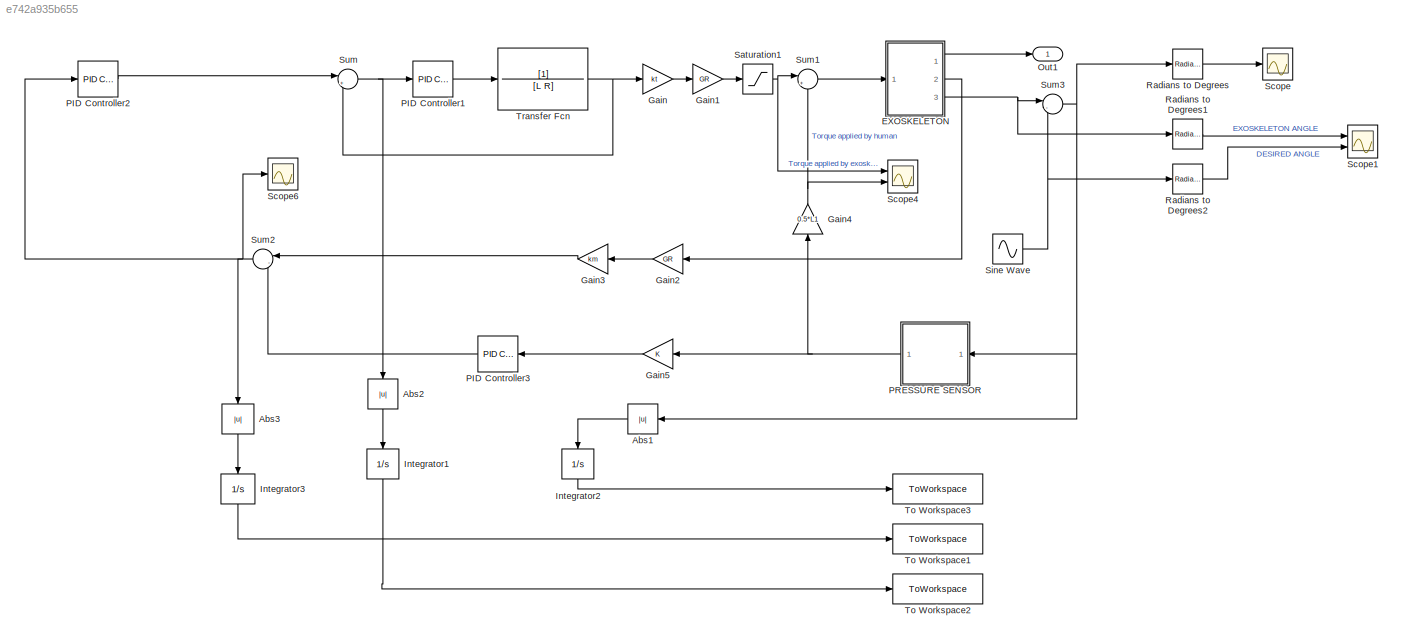
MODEL slx_e742a935b655
KIND model
CONFIG AbsTol = auto
CONFIG EnableMultiTasking = off
CONFIG FixedStep = auto
CONFIG MaxStep = 0.5
CONFIG MinStep = 0.00001
CONFIG RelTol = 0.05
CONFIG SampleTimeConstraint = Unconstrained
CONFIG Solver = ode45
CONFIG SolverName = ode45
CONFIG StartTime = 0.0
CONFIG StopTime = 5
WORKSPACE source: external: MAT-File  (data not in archive)
BLOCK [Abs] Abs1
  SaturateOnIntegerOverflow = off
BLOCK [Abs] Abs2
  SaturateOnIntegerOverflow = off
BLOCK [Abs] Abs3
  SaturateOnIntegerOverflow = off
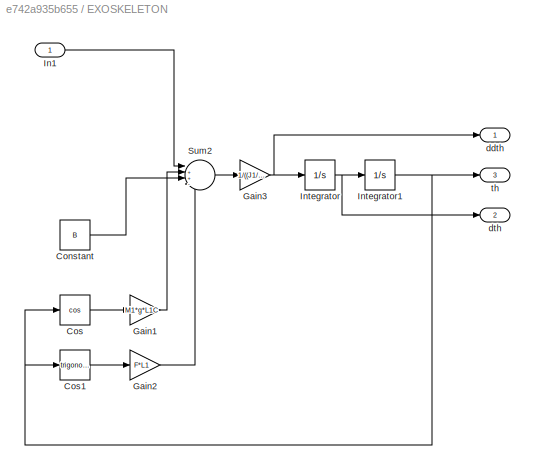
BLOCK [SubSystem] EXOSKELETON 
  Ports = [1, 3]
  RequestExecContextInheritance = off
BLOCK [Constant] EXOSKELETON /Constant
  Value = B
BLOCK [Trigonometry] EXOSKELETON /Cos
  Operator = cos
  Ports = [1, 1]
BLOCK [Trigonometry] EXOSKELETON /Cos1
  Ports = [1, 1]
BLOCK [Gain] EXOSKELETON /Gain1
  Gain = M1*g*L1C
  OutDataTypeStr = Inherit: Inherit via internal rule
  ParamDataTypeStr = Inherit: Inherit via internal rule
  SaturateOnIntegerOverflow = off
BLOCK [Gain] EXOSKELETON /Gain2
  Gain = F*L1
  OutDataTypeStr = Inherit: Inherit via internal rule
  ParamDataTypeStr = Inherit: Inherit via internal rule
  SaturateOnIntegerOverflow = off
BLOCK [Gain] EXOSKELETON /Gain3
  Gain = 1/((J1/GR^2) + M1*L1C^2 + J_rotor)
  OutDataTypeStr = Inherit: Inherit via internal rule
  ParamDataTypeStr = Inherit: Inherit via internal rule
  SaturateOnIntegerOverflow = off
BLOCK [Inport] EXOSKELETON /In1
  IconDisplay = Port number
BLOCK [Integrator] EXOSKELETON /Integrator
  Ports = [1, 1]
BLOCK [Integrator] EXOSKELETON /Integrator1
  Ports = [1, 1]
BLOCK [Sum] EXOSKELETON /Sum2
  IconShape = round
  InputSameDT = off
  Inputs = |++-+
  OutDataTypeStr = Inherit: Inherit via internal rule
  Ports = [4, 1]
  SaturateOnIntegerOverflow = off
BLOCK [Outport] EXOSKELETON /ddth
  IconDisplay = Port number
BLOCK [Outport] EXOSKELETON /dth
  IconDisplay = Port number
  Port = 2
BLOCK [Outport] EXOSKELETON /th
  IconDisplay = Port number
  Port = 3
BLOCK [Gain] Gain
  Gain = kt
  OutDataTypeStr = Inherit: Inherit via internal rule
  ParamDataTypeStr = Inherit: Inherit via internal rule
  SaturateOnIntegerOverflow = off
BLOCK [Gain] Gain1
  Gain = GR
  OutDataTypeStr = Inherit: Inherit via internal rule
  ParamDataTypeStr = Inherit: Inherit via internal rule
  SaturateOnIntegerOverflow = off
BLOCK [Gain] Gain2
  Gain = GR
  OutDataTypeStr = Inherit: Inherit via internal rule
  ParamDataTypeStr = Inherit: Inherit via internal rule
  SaturateOnIntegerOverflow = off
BLOCK [Gain] Gain3
  Gain = km
  OutDataTypeStr = Inherit: Inherit via internal rule
  ParamDataTypeStr = Inherit: Inherit via internal rule
  SaturateOnIntegerOverflow = off
BLOCK [Gain] Gain4
  Gain = 0.5*L1
  OutDataTypeStr = Inherit: Inherit via internal rule
  ParamDataTypeStr = Inherit: Inherit via internal rule
  SaturateOnIntegerOverflow = off
BLOCK [Gain] Gain5
  OutDataTypeStr = Inherit: Inherit via internal rule
  ParamDataTypeStr = Inherit: Inherit via internal rule
  SaturateOnIntegerOverflow = off
BLOCK [Integrator] Integrator1
  Ports = [1, 1]
BLOCK [Integrator] Integrator2
  Ports = [1, 1]
BLOCK [Integrator] Integrator3
  Ports = [1, 1]
BLOCK [Outport] Out1
  IconDisplay = Port number
BLOCK [Reference] PID Controller1  REF=simulink/Continuous/PID Controller
  Ports = [1, 1]
  SourceBlock = simulink/Continuous/PID Controller
  SourceProductBaseCode = SL
  SourceProductName = Simulink
  SourceType = PID 1dof
BLOCK [Reference] PID Controller2  REF=simulink/Continuous/PID Controller
  Ports = [1, 1]
  SourceBlock = simulink/Continuous/PID Controller
  SourceProductBaseCode = SL
  SourceProductName = Simulink
  SourceType = PID 1dof
BLOCK [Reference] PID Controller3  REF=simulink/Continuous/PID Controller
  Ports = [1, 1]
  SourceBlock = simulink/Continuous/PID Controller
  SourceProductBaseCode = SL
  SourceProductName = Simulink
  SourceType = PID 1dof
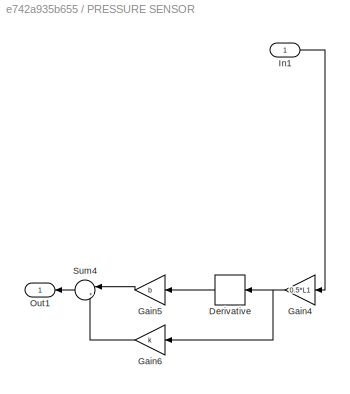
BLOCK [SubSystem] PRESSURE SENSOR
  Ports = [1, 1]
  RequestExecContextInheritance = off
BLOCK [Derivative] PRESSURE SENSOR/Derivative
BLOCK [Gain] PRESSURE SENSOR/Gain4
  Gain = 0.5*L1
  OutDataTypeStr = Inherit: Inherit via internal rule
  ParamDataTypeStr = Inherit: Inherit via internal rule
  SaturateOnIntegerOverflow = off
BLOCK [Gain] PRESSURE SENSOR/Gain5
  Gain = b
  OutDataTypeStr = Inherit: Inherit via internal rule
  ParamDataTypeStr = Inherit: Inherit via internal rule
  SaturateOnIntegerOverflow = off
BLOCK [Gain] PRESSURE SENSOR/Gain6
  Gain = k
  OutDataTypeStr = Inherit: Inherit via internal rule
  ParamDataTypeStr = Inherit: Inherit via internal rule
  SaturateOnIntegerOverflow = off
BLOCK [Inport] PRESSURE SENSOR/In1
  IconDisplay = Port number
BLOCK [Outport] PRESSURE SENSOR/Out1
  IconDisplay = Port number
BLOCK [Sum] PRESSURE SENSOR/Sum4
  IconShape = round
  InputSameDT = off
  Inputs = |++
  OutDataTypeStr = Inherit: Inherit via internal rule
  Ports = [2, 1]
  SaturateOnIntegerOverflow = off
BLOCK [Reference] Radians to Degrees  REF=simulink_extras/Transformations/Radians
to Degrees
  Ports = [1, 1]
  SourceBlock = simulink_extras/Transformations/Radians\nto Degrees
  SourceProductBaseCode = SL
  SourceProductName = Simulink
  SourceType = RadiansToDegrees
BLOCK [Reference] Radians to Degrees1  REF=simulink_extras/Transformations/Radians
to Degrees
  Ports = [1, 1]
  SourceBlock = simulink_extras/Transformations/Radians\nto Degrees
  SourceProductBaseCode = SL
  SourceProductName = Simulink
  SourceType = RadiansToDegrees
BLOCK [Reference] Radians to Degrees2  REF=simulink_extras/Transformations/Radians
to Degrees
  Ports = [1, 1]
  SourceBlock = simulink_extras/Transformations/Radians\nto Degrees
  SourceProductBaseCode = SL
  SourceProductName = Simulink
  SourceType = RadiansToDegrees
BLOCK [Saturate] Saturation1
  InputPortMap = u0
  LowerLimit = -200
  Ports = [1, 1]
  UpperLimit = 200
BLOCK [Scope] Scope
  Floating = off
  NumInputPorts = 1
  Ports = [1]
  ScopeSpecificationString = Simulink.scopes.TimeScopeBlockCfg('CurrentConfiguration', extmgr.ConfigurationSet(extmgr.Configuration('Core','General UI',true),extmgr.Configuration('Core','Source UI',true),extmgr.Configuration('Sources','WiredSimulink',true),extmgr.Configuration('Visuals','Time Domain',true,'SerializedDisplays',{struct('MinYLimReal','-3.15764','MaxYLimReal','3.03013','YLabelReal','','MinYLimMag','0.00000','MaxY...<+1417ch>
BLOCK [Scope] Scope1
  Floating = off
  NumInputPorts = 2
  Ports = [2]
  ScopeSpecificationString = Simulink.scopes.TimeScopeBlockCfg('CurrentConfiguration', extmgr.ConfigurationSet(extmgr.Configuration('Core','General UI',true),extmgr.Configuration('Core','Source UI',true),extmgr.Configuration('Sources','WiredSimulink',true,'DataLoggingVariableName','ScopeData1'),extmgr.Configuration('Visuals','Time Domain',true,'SerializedDisplays',{struct('MinYLimReal','-28.64789','MaxYLimReal','6.1856','YLab...<+1512ch>
BLOCK [Scope] Scope4
  Floating = off
  NumInputPorts = 2
  Ports = [2]
  ScopeSpecificationString = Simulink.scopes.TimeScopeBlockCfg('CurrentConfiguration', extmgr.ConfigurationSet(extmgr.Configuration('Core','General UI',true),extmgr.Configuration('Core','Source UI',true),extmgr.Configuration('Sources','WiredSimulink',true,'DataLoggingVariableName','ScopeData2'),extmgr.Configuration('Visuals','Time Domain',true,'SerializedDisplays',{struct('MinYLimReal','-32.56275','MaxYLimReal','59.17364','YL...<+1542ch>
BLOCK [Scope] Scope6
  Floating = off
  NumInputPorts = 1
  Ports = [1]
  ScopeSpecificationString = Simulink.scopes.TimeScopeBlockCfg('CurrentConfiguration', extmgr.ConfigurationSet(extmgr.Configuration('Core','General UI',true),extmgr.Configuration('Core','Source UI',true),extmgr.Configuration('Sources','WiredSimulink',true,'DataLoggingVariableName','ScopeData7'),extmgr.Configuration('Visuals','Time Domain',true,'SerializedDisplays',{struct('MinYLimReal','-117.7125','MaxYLimReal','89.8222','YLa...<+1444ch>
BLOCK [Sin] Sine Wave
  Amplitude = 0.4
  Frequency = 2
  Ports = [0, 1]
  SampleTime = 0
BLOCK [Sum] Sum
  IconShape = round
  InputSameDT = off
  Inputs = |+-
  OutDataTypeStr = Inherit: Inherit via internal rule
  Ports = [2, 1]
  SaturateOnIntegerOverflow = off
BLOCK [Sum] Sum1
  IconShape = round
  InputSameDT = off
  Inputs = |++
  OutDataTypeStr = Inherit: Inherit via internal rule
  Ports = [2, 1]
  SaturateOnIntegerOverflow = off
BLOCK [Sum] Sum2
  IconShape = round
  InputSameDT = off
  Inputs = |-+
  OutDataTypeStr = Inherit: Inherit via internal rule
  Ports = [2, 1]
  SaturateOnIntegerOverflow = off
BLOCK [Sum] Sum3
  IconShape = round
  InputSameDT = off
  Inputs = |-+
  OutDataTypeStr = Inherit: Inherit via internal rule
  Ports = [2, 1]
  SaturateOnIntegerOverflow = off
BLOCK [ToWorkspace] To Workspace1
  FixptAsFi = on
  MaxDataPoints = inf
  Ports = [1]
  SampleTime = -1
  VariableName = IAE2
BLOCK [ToWorkspace] To Workspace2
  FixptAsFi = on
  MaxDataPoints = inf
  Ports = [1]
  SampleTime = -1
  VariableName = IAE3
BLOCK [ToWorkspace] To Workspace3
  FixptAsFi = on
  MaxDataPoints = inf
  Ports = [1]
  SampleTime = -1
  VariableName = IAE1
BLOCK [TransferFcn] Transfer Fcn
  Denominator = [L R]
LINE Abs1:1 -> Integrator2:1
LINE Abs2:1 -> Integrator1:1
LINE Abs3:1 -> Integrator3:1
LINE EXOSKELETON /Constant:1 -> EXOSKELETON /Sum2:3
LINE EXOSKELETON /Cos1:1 -> EXOSKELETON /Gain2:1
LINE EXOSKELETON /Cos:1 -> EXOSKELETON /Gain1:1
LINE EXOSKELETON /Gain1:1 -> EXOSKELETON /Sum2:2
LINE EXOSKELETON /Gain2:1 -> EXOSKELETON /Sum2:4
NET EXOSKELETON /Gain3:1 -> EXOSKELETON /Integrator:1, EXOSKELETON /ddth:1
LINE EXOSKELETON /In1:1 -> EXOSKELETON /Sum2:1
NET EXOSKELETON /Integrator1:1 -> EXOSKELETON /Cos1:1, EXOSKELETON /Cos:1, EXOSKELETON /th:1
NET EXOSKELETON /Integrator:1 -> EXOSKELETON /Integrator1:1, EXOSKELETON /dth:1
LINE EXOSKELETON /Sum2:1 -> EXOSKELETON /Gain3:1
LINE EXOSKELETON :1 -> Out1:1
LINE EXOSKELETON :2 -> Gain2:1
NET EXOSKELETON :3 -> Radians to Degrees1:1, Sum3:1
LINE Gain1:1 -> Saturation1:1
LINE Gain2:1 -> Gain3:1
LINE Gain3:1 -> Sum2:1
NET Gain4:1 -> Scope4:2, Sum1:2
LINE Gain5:1 -> PID Controller3:1
LINE Gain:1 -> Gain1:1
LINE Integrator1:1 -> To Workspace2:1
LINE Integrator2:1 -> To Workspace3:1
LINE Integrator3:1 -> To Workspace1:1
LINE PID Controller1:1 -> Transfer Fcn:1
LINE PID Controller2:1 -> Sum:1
LINE PID Controller3:1 -> Sum2:2
LINE PRESSURE SENSOR/Derivative:1 -> PRESSURE SENSOR/Gain5:1
NET PRESSURE SENSOR/Gain4:1 -> PRESSURE SENSOR/Derivative:1, PRESSURE SENSOR/Gain6:1
LINE PRESSURE SENSOR/Gain5:1 -> PRESSURE SENSOR/Sum4:1
LINE PRESSURE SENSOR/Gain6:1 -> PRESSURE SENSOR/Sum4:2
LINE PRESSURE SENSOR/In1:1 -> PRESSURE SENSOR/Gain4:1
LINE PRESSURE SENSOR/Sum4:1 -> PRESSURE SENSOR/Out1:1
NET PRESSURE SENSOR:1 -> Gain4:1, Gain5:1
LINE Radians to Degrees1:1 -> Scope1:1
LINE Radians to Degrees2:1 -> Scope1:2
LINE Radians to Degrees:1 -> Scope:1
NET Saturation1:1 -> Scope4:1, Sum1:1
NET Sine Wave:1 -> Radians to Degrees2:1, Sum3:2
LINE Sum1:1 -> EXOSKELETON :1
NET Sum2:1 -> Abs3:1, PID Controller2:1, Scope6:1
NET Sum3:1 -> Abs1:1, PRESSURE SENSOR:1, Radians to Degrees:1
NET Sum:1 -> Abs2:1, PID Controller1:1
NET Transfer Fcn:1 -> Gain:1, Sum:2
note: NET lines group one-source signal fan-out (src -> all destinations, sorted); 1:1 wires keep LINE
